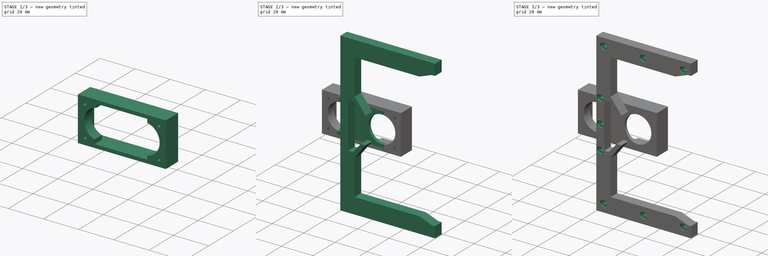
[diagram: build sequence overview — one tinted view per stage of 3, left to right]
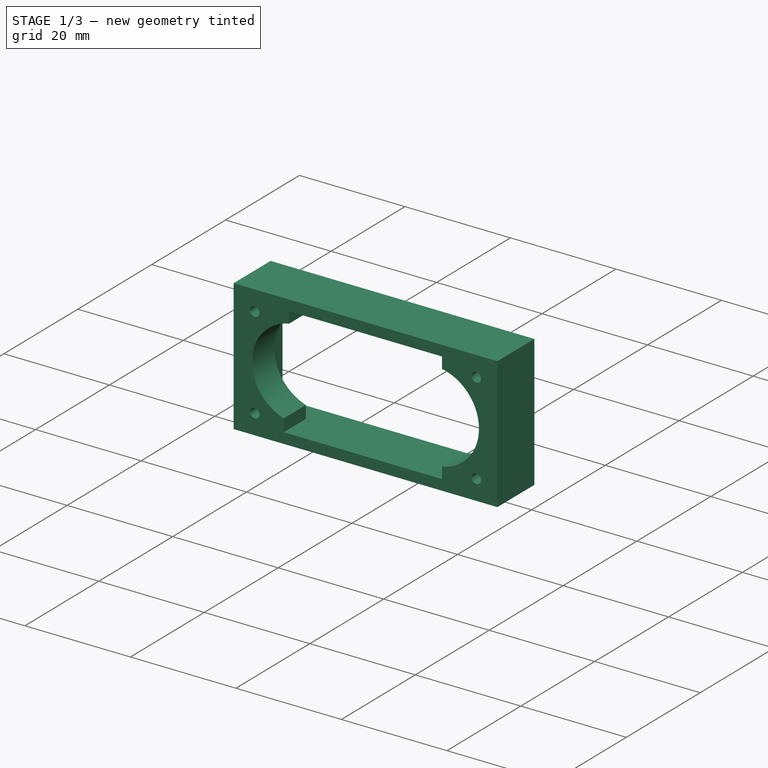
[diagram: stage 1 of 3 — iso view after this stage's code; geometry added in this stage tinted green]
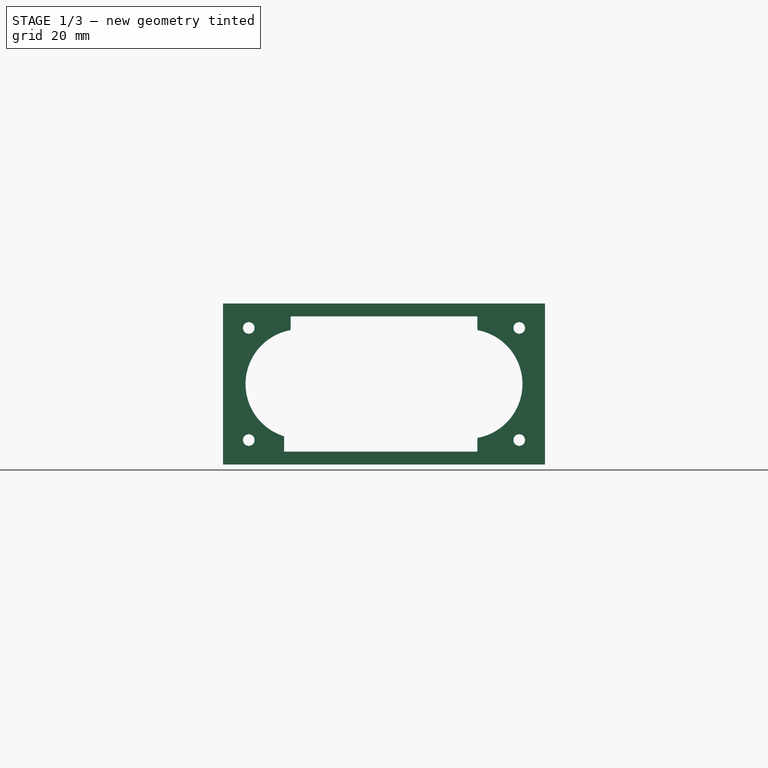
[diagram: stage 1 of 3 — front view after this stage's code; geometry added in this stage tinted green]
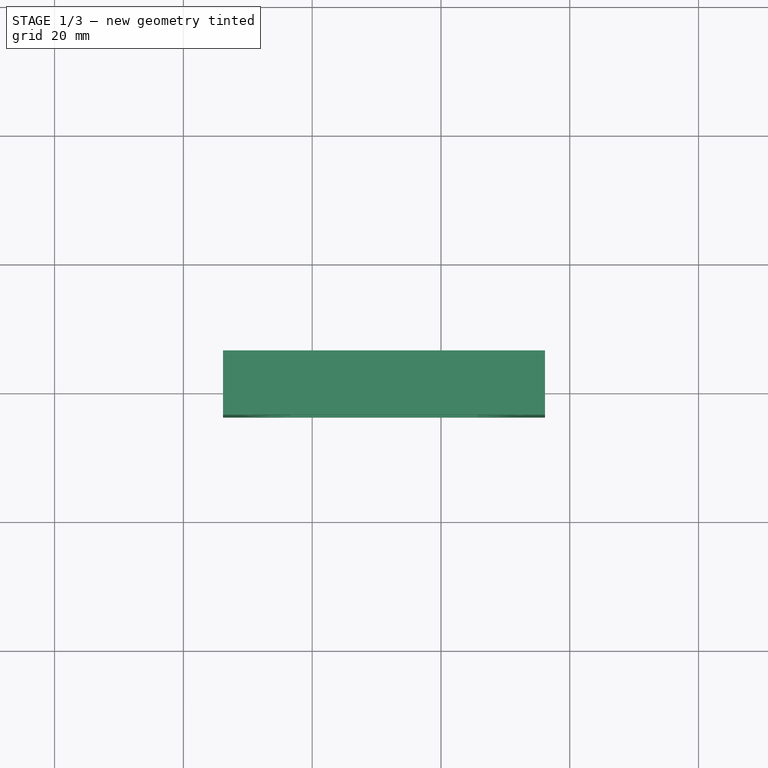
[diagram: stage 1 of 3 — top view after this stage's code; geometry added in this stage tinted green]
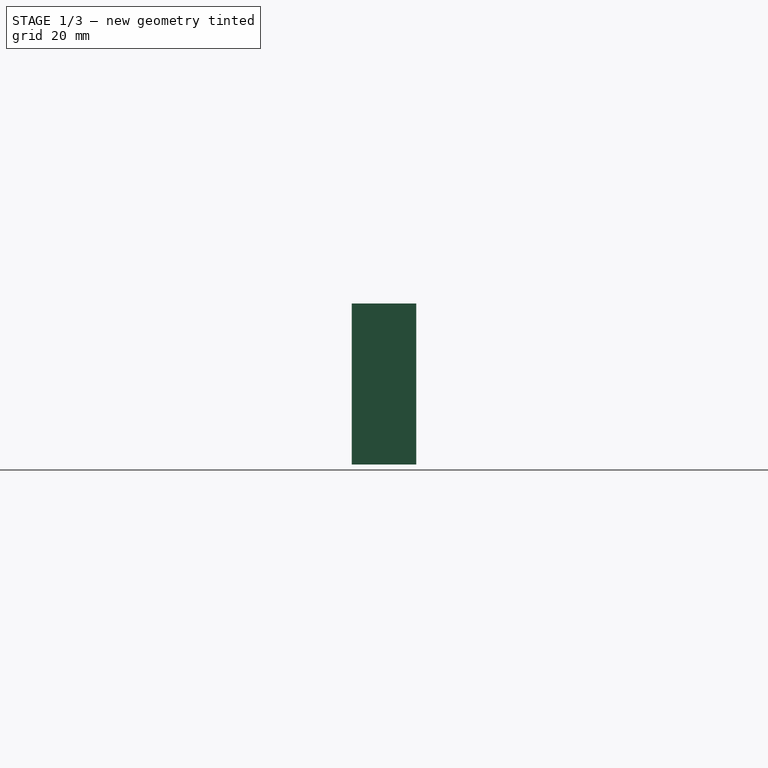
[diagram: stage 1 of 3 — right view after this stage's code; geometry added in this stage tinted green]
FCSTD DOCUMENT  (FreeCAD 1.0R39285 (Git))
Label: top-stand-02
License: All rights reserved
LicenseURL: http://en.wikipedia.org/wiki/All_rights_reserved
objects: Sketcher::SketchObject×7, PartDesign::Pad×4, PartDesign::Hole×2, PartDesign::Body×2, App::Part×2, PartDesign::Plane×1, PartDesign::Pocket×1
note: 38 computed .brp shape members not serialized (recipe doc carries the construction recipe); baked Part::Feature solids carry a one-line shape summary decoded from their .brp

FEATURE [PartDesign::Plane] DatumPlane
  AttachmentSupport = -> [Hole001]
  Length = 83.3753
  MapMode = 5
  Placement = pos=(-8.84591,-3.71239,7.5) rot=(-1,0,0;1.5708rad)
  ResizeMode = 0
  Width = 116.371
FEATURE [PartDesign::Body] Body
  AllowCompound = false
  Group = -> [Sketch001,Pad,Sketch,Hole,Sketch002,Hole001,DatumPlane]
  Origin = -> Origin001
  Tip = -> Hole001
FEATURE [App::Part] Part
  Group = -> [Body]
  Origin = -> Origin
FEATURE [Sketcher::SketchObject] Sketch003
  ArcFitTolerance = 1e-06
  AttachmentSupport = -> [DatumPlane]
  FullyConstrained = true
  MakeInternals = false
  MapMode = 5
  Placement = pos=(-8.84591,-3.71239,7.5) rot=(-1,0,0;1.5708rad)
  sketch-geometry (17):
    g0: LineSegment StartX=-23.5 StartY=-10.75 StartZ=0 EndX=-14.5 EndY=-10.75 EndZ=0
    g1: LineSegment StartX=23.5 StartY=-10.75 StartZ=0 EndX=23.5 EndY=10.75 EndZ=0
    g2: LineSegment StartX=23.5 StartY=10.75 StartZ=0 EndX=14.5 EndY=10.75 EndZ=0
    g3: LineSegment StartX=-23.5 StartY=10.75 StartZ=0 EndX=-23.5 EndY=-10.75 EndZ=0
    g4: GeomPoint [constr] X=0 Y=0 Z=0
    g5: ArcOfCircle CenterX=-13 CenterY=0 CenterZ=0 NormalX=0 NormalY=0 NormalZ=1 AngleXU=0 Radius=8.5 StartAngle=1.86933 EndAngle=4.53499
    g6: ArcOfCircle CenterX=13 CenterY=0 CenterZ=0 NormalX=0 NormalY=0 NormalZ=1 AngleXU=0 Radius=8.5 StartAngle=4.88979 EndAngle=7.67658
    g7: Circle CenterX=-21 CenterY=8.7 CenterZ=0 NormalX=0 NormalY=0 NormalZ=1 AngleXU=0 Radius=0.9
    g8: Circle CenterX=-21 CenterY=-8.7 CenterZ=0 NormalX=0 NormalY=0 NormalZ=1 AngleXU=0 Radius=0.9
    g9: Circle CenterX=21 CenterY=-8.7 CenterZ=0 NormalX=0 NormalY=0 NormalZ=1 AngleXU=0 Radius=0.9
    g10: Circle CenterX=21 CenterY=8.7 CenterZ=0 NormalX=0 NormalY=0 NormalZ=1 AngleXU=0 Radius=0.9
    g11: LineSegment StartX=-15.5 StartY=10.75 StartZ=0 EndX=-15.5 EndY=8.12404 EndZ=0
    g12: LineSegment StartX=-14.5 StartY=-8.3666 StartZ=0 EndX=-14.5 EndY=-10.75 EndZ=0
    g13: LineSegment StartX=14.5 StartY=-8.3666 StartZ=0 EndX=14.5 EndY=-10.75 EndZ=0
    g14: LineSegment StartX=14.5 StartY=8.3666 StartZ=0 EndX=14.5 EndY=10.75 EndZ=0
    g15: LineSegment StartX=-15.5 StartY=10.75 StartZ=0 EndX=-23.5 EndY=10.75 EndZ=0
    g16: LineSegment StartX=14.5 StartY=-10.75 StartZ=0 EndX=23.5 EndY=-10.75 EndZ=0
  constraints (48):
    c: Coincident(g16,g1)
    c: Coincident(g1,g2)
    c: Coincident(g15,g3)
    c: Coincident(g3,g0)
    c: Horizontal(g0)
    c: Horizontal(g2)
    c: Vertical(g3)
    c: Symmetric(g2,g0,g4)
    c: Distance(g1,g3) = 47
    c: Distance(g0,g15) = 21.5
    c: Coincident(g4,g-1)
    c: Diameter(g5) = 17
    c: PointOnObject(g5,g-1)
    c: Diameter(g6) = 17
    c: PointOnObject(g6,g-1)
    c: DistanceX(g5,g4) = 13
    c: DistanceX(g4,g6) = 13
    c: Diameter(g7) = 1.8
    c: Diameter(g8) = 1.8
    c: Diameter(g9) = 1.8
    c: Diameter(g10) = 1.8
    c: PointOnObject(g11,g15)
    c: Vertical(g11)
    c: Vertical(g12)
    c: PointOnObject(g13,g16)
    c: Vertical(g13)
    c: Coincident(g2,g14)
    c: PointOnObject(g15,g11)
    c: Coincident(g5,g12)
    c: Coincident(g5,g11)
    c: Coincident(g6,g14)
    c: Coincident(g6,g13)
    c: Coincident(g0,g12)
    c: PointOnObject(g16,g13)
    c: Vertical(g14)
    c: DistanceX(g15,g15) = 8
    c: DistanceX(g0,g0) = 9
    c: DistanceX(g16,g16) = 9
    c: DistanceX(g2,g2) = 9
    c: Horizontal(g15)
    c: Horizontal(g16)
    c: DistanceX(g7,g10) = 42
    c: Symmetric(g7,g10,g-2)
    c: Symmetric(g7,g8,g-1)
    c: Symmetric(g8,g9,g-2)
    c: Symmetric(g1,g1,g-1)
    c: DistanceY(g3,g2) = 0
    c: DistanceY(g9,g10) = 17.4
FEATURE [Sketcher::SketchObject] Sketch004
  ArcFitTolerance = 1e-06
  AttachmentSupport = -> [DatumPlane]
  FullyConstrained = true
  MakeInternals = false
  MapMode = 5
  Placement = pos=(-8.84591,-3.71239,7.5) rot=(-1,0,0;1.5708rad)
  sketch-geometry (12):
    g0: LineSegment StartX=-25 StartY=-12.5 StartZ=0 EndX=25 EndY=-12.5 EndZ=0
    g1: LineSegment StartX=25 StartY=-12.5 StartZ=0 EndX=25 EndY=12.5 EndZ=0
    g2: LineSegment StartX=25 StartY=12.5 StartZ=0 EndX=-25 EndY=12.5 EndZ=0
    g3: LineSegment StartX=-25 StartY=12.5 StartZ=0 EndX=-25 EndY=-12.5 EndZ=0
    g4: GeomPoint [constr] X=0 Y=0 Z=0
    g5: Circle [constr] CenterX=-13 CenterY=0 CenterZ=0 NormalX=0 NormalY=0 NormalZ=1 AngleXU=0 Radius=8
    g6: Circle [constr] CenterX=13 CenterY=0 CenterZ=0 NormalX=0 NormalY=0 NormalZ=1 AngleXU=0 Radius=8
    g7: LineSegment StartX=-22.75 StartY=-10.5 StartZ=0 EndX=22.75 EndY=-10.5 EndZ=0
    g8: LineSegment StartX=22.75 StartY=-10.5 StartZ=0 EndX=22.75 EndY=10.5 EndZ=0
    g9: LineSegment StartX=22.75 StartY=10.5 StartZ=0 EndX=-22.75 EndY=10.5 EndZ=0
    g10: LineSegment StartX=-22.75 StartY=10.5 StartZ=0 EndX=-22.75 EndY=-10.5 EndZ=0
    g11: GeomPoint [constr] X=0 Y=0 Z=0
  constraints (30):
    c: Coincident(g0,g1)
    c: Coincident(g1,g2)
    c: Coincident(g2,g3)
    c: Coincident(g3,g0)
    c: Horizontal(g0)
    c: Horizontal(g2)
    c: Vertical(g1)
    c: Vertical(g3)
    c: Symmetric(g2,g0,g4)
    c: Distance(g1,g3) = 50
    c: Distance(g0,g2) = 25
    c: Coincident(g4,g-1)
    c: Diameter(g5) = 16
    c: PointOnObject(g5,g-1)
    c: Diameter(g6) = 16
    c: PointOnObject(g6,g-1)
    c: DistanceX(g5,g4) = 13
    c: DistanceX(g4,g6) = 13
    c: Coincident(g7,g8)
    c: Coincident(g8,g9)
    c: Coincident(g9,g10)
    c: Coincident(g10,g7)
    c: Horizontal(g7)
    c: Horizontal(g9)
    c: Vertical(g8)
    c: Symmetric(g9,g7,g11)
    c: Distance(g8,g10) = 45.5
    c: Distance(g7,g9) = 21
    c: PointOnObject(g11,g-2)
    c: Symmetric(g9,g7,g-1)
FEATURE [PartDesign::Pad] Pad001
  Direction = (0,1,2e-16)
  Length = 10
  Length2 = 10
  Placement = pos=(-8.84591,-3.71239,7.5) rot=(-1,0,0;1.5708rad)
  Profile = -> Sketch004
  ReferenceAxis = -> Sketch004 [N_Axis]
  Suppressed = false
  Type = 0
FEATURE [PartDesign::Pad] Pad002
  BaseFeature = -> Pad001
  Direction = (0,1,2e-16)
  Length = 6
  Length2 = 10
  Placement = pos=(-8.84591,-3.71239,7.5) rot=(-1,0,0;1.5708rad)
  Profile = -> Sketch003
  ReferenceAxis = -> Sketch003 [N_Axis]
  Suppressed = false
  Type = 0
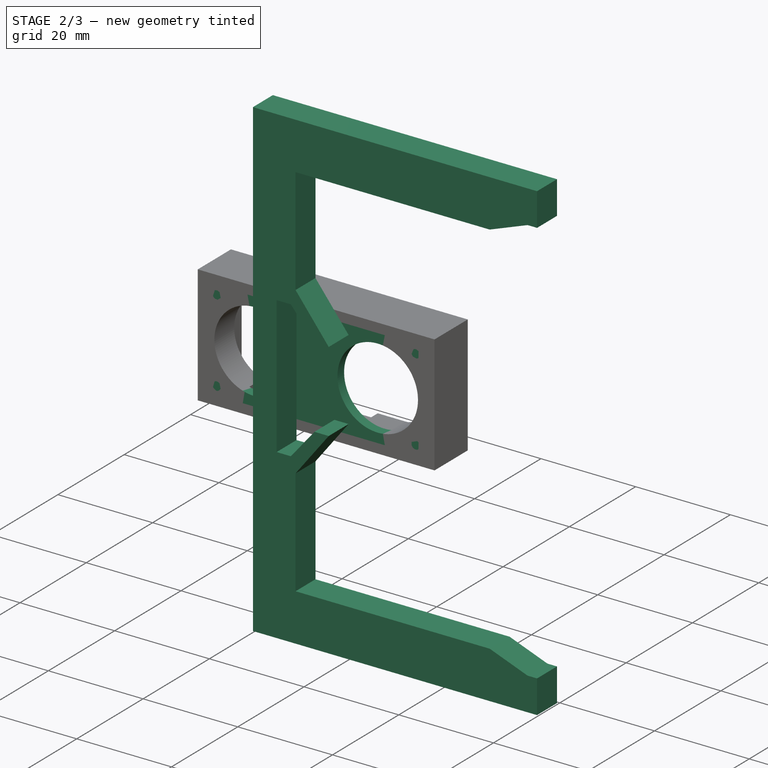
[diagram: stage 2 of 3 — iso view after this stage's code; geometry added in this stage tinted green]
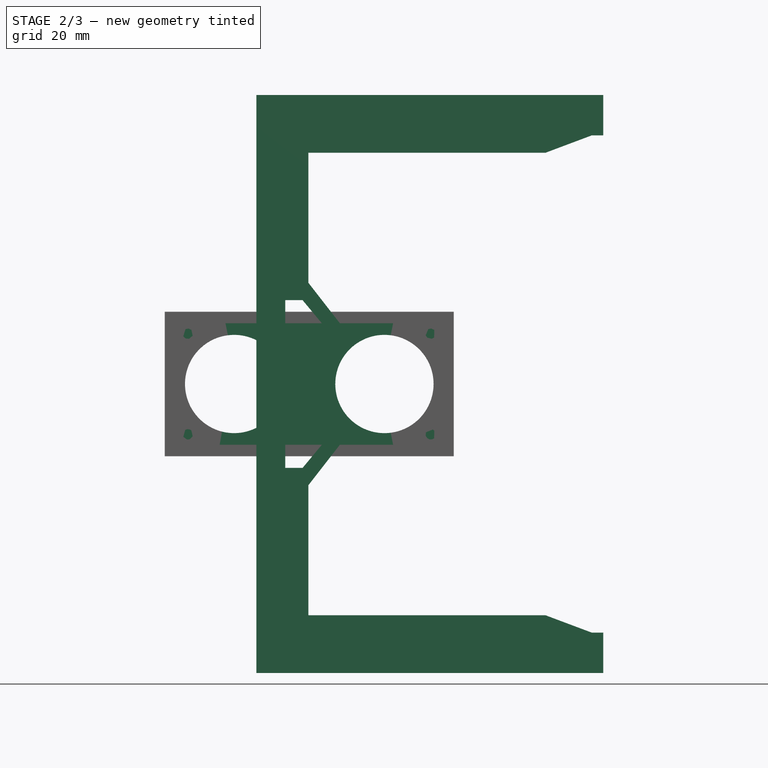
[diagram: stage 2 of 3 — front view after this stage's code; geometry added in this stage tinted green]
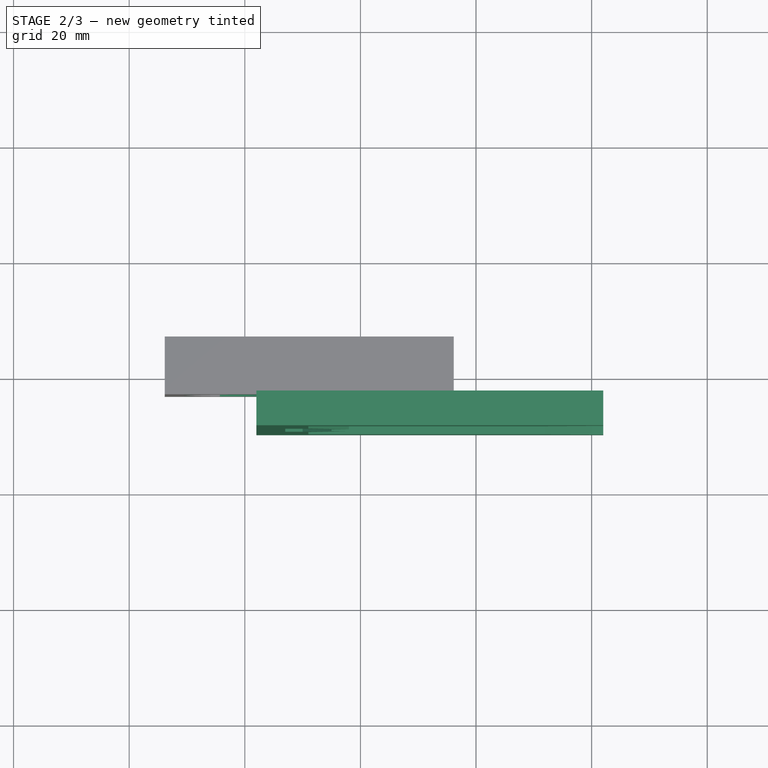
[diagram: stage 2 of 3 — top view after this stage's code; geometry added in this stage tinted green]
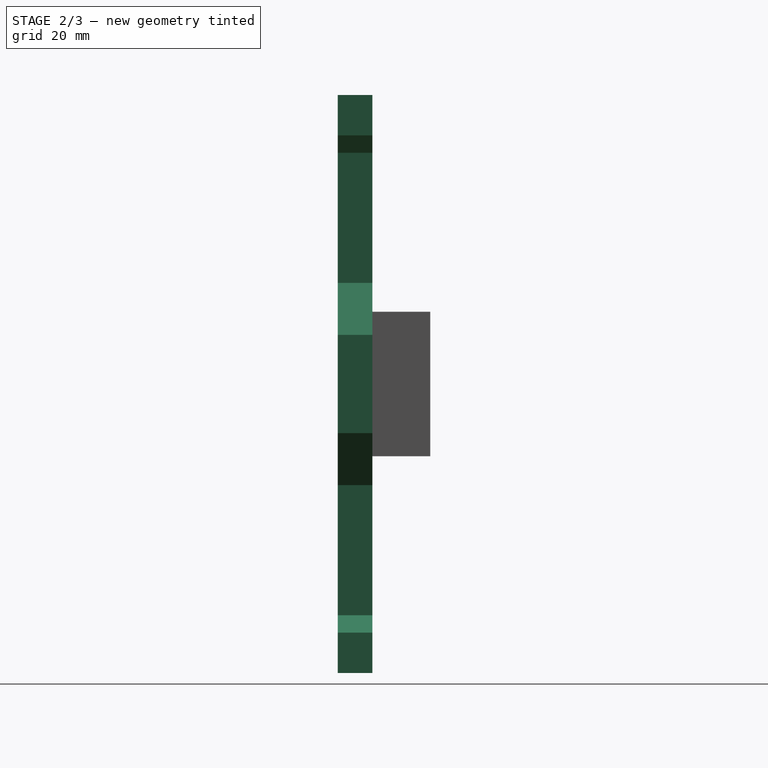
[diagram: stage 2 of 3 — right view after this stage's code; geometry added in this stage tinted green]
FEATURE [Sketcher::SketchObject] Sketch001  label="Sketch_base"
  ArcFitTolerance = 1e-06
  FullyConstrained = false
  MakeInternals = false
  MapMode = 45
  Placement = pos=(-8.84591,-9.71239,7.5) rot=(-1,0,0;1.5708rad)
  sketch-geometry (25):
    g0: GeomPoint [constr] X=-3.15 Y=0 Z=0
    g1: LineSegment StartX=3.85 StartY=8.5 StartZ=0 EndX=-1.15 EndY=14.5 EndZ=0
    g2: LineSegment StartX=-1.15 StartY=14.5 StartZ=0 EndX=-4.15 EndY=14.5 EndZ=0
    g3: LineSegment StartX=-4.15 StartY=14.5 StartZ=0 EndX=-4.15 EndY=-14.5 EndZ=0
    g4: LineSegment StartX=-4.15 StartY=-14.5 StartZ=0 EndX=-1.15 EndY=-14.5 EndZ=0
    g5: LineSegment StartX=-1.15 StartY=-14.5 StartZ=0 EndX=3.85 EndY=-8.5 EndZ=0
    g6: LineSegment StartX=3.85 StartY=-8.5 StartZ=0 EndX=6.85 EndY=-8.5 EndZ=0
    g7: LineSegment StartX=6.85 StartY=-8.5 StartZ=0 EndX=-0.15 EndY=-17.5 EndZ=0
    g8: LineSegment StartX=-9.15 StartY=-17.5 StartZ=0 EndX=-9.15 EndY=17.5 EndZ=0
    g9: LineSegment StartX=-0.15 StartY=17.5 StartZ=0 EndX=6.85 EndY=8.5 EndZ=0
    g10: LineSegment StartX=6.85 StartY=8.5 StartZ=0 EndX=3.85 EndY=8.5 EndZ=0
    g11: LineSegment StartX=-0.15 StartY=-17.5 StartZ=0 EndX=-0.15 EndY=-40 EndZ=0
    g12: LineSegment StartX=-0.15 StartY=-40 StartZ=0 EndX=40.85 EndY=-40 EndZ=0
    g13: LineSegment StartX=40.85 StartY=-40 StartZ=0 EndX=48.85 EndY=-43 EndZ=0
    g14: LineSegment StartX=48.85 StartY=-43 StartZ=0 EndX=50.85 EndY=-43 EndZ=0
    g15: LineSegment StartX=50.85 StartY=-43 StartZ=0 EndX=50.85 EndY=-50 EndZ=0
    g16: LineSegment StartX=50.85 StartY=-50 StartZ=0 EndX=-9.15 EndY=-50 EndZ=0
    g17: LineSegment StartX=-9.15 StartY=-50 StartZ=0 EndX=-9.15 EndY=-17.5 EndZ=0
    g18: LineSegment StartX=-0.15 StartY=17.5 StartZ=0 EndX=-0.15 EndY=40 EndZ=0
    g19: LineSegment StartX=-0.15 StartY=40 StartZ=0 EndX=40.85 EndY=40 EndZ=0
    g20: LineSegment StartX=40.85 StartY=40 StartZ=0 EndX=48.85 EndY=43 EndZ=0
    g21: LineSegment StartX=48.85 StartY=43 StartZ=0 EndX=50.85 EndY=43 EndZ=0
    g22: LineSegment StartX=50.85 StartY=43 StartZ=0 EndX=50.85 EndY=50 EndZ=0
    g23: LineSegment StartX=50.85 StartY=50 StartZ=0 EndX=-9.15 EndY=50 EndZ=0
    g24: LineSegment StartX=-9.15 StartY=50 StartZ=0 EndX=-9.15 EndY=17.5 EndZ=0
  constraints (77):
    c: Coincident(g1,g2)
    c: Horizontal(g2)
    c: Coincident(g2,g3)
    c: Vertical(g3)
    c: Coincident(g3,g4)
    c: Horizontal(g4)
    c: Coincident(g4,g5)
    c: Coincident(g5,g6)
    c: Horizontal(g6)
    c: Coincident(g6,g7)
    c: Vertical(g8)
    c: Coincident(g9,g10)
    c: Coincident(g10,g1)
    c: Horizontal(g10)
    c: Equal(g4,g2)
    c: Equal(g7,g9)
    c: Equal(g5,g1)
    c: Equal(g6,g10)
    c: Coincident(g11,g12)
    c: Horizontal(g12)
    c: Coincident(g12,g13)
    c: Coincident(g13,g14)
    c: Horizontal(g14)
    c: Coincident(g14,g15)
    c: Vertical(g15)
    c: Coincident(g15,g16)
    c: Horizontal(g16)
    c: Coincident(g16,g17)
    c: Vertical(g17)
    c: Vertical(g18)
    c: Coincident(g18,g19)
    c: Horizontal(g19)
    c: Coincident(g19,g20)
    c: Coincident(g20,g21)
    c: Horizontal(g21)
    c: Coincident(g21,g22)
    c: Vertical(g22)
    c: Coincident(g22,g23)
    c: Horizontal(g23)
    c: Coincident(g23,g24)
    c: Coincident(g24,g8)
    c: Vertical(g24)
    c: Equal(g16,g23)
    c: Equal(g22,g15)
    c: Equal(g21,g14)
    c: Parallel(g17,g11)
    c: Coincident(g11,g7)
    c: Coincident(g18,g9)
    c: Coincident(g8,g17)
    c: DistanceY(g17,g17) = 32.5
    c: DistanceY(g8,g8) = 35
    c: DistanceY(g24,g24) = 32.5
    c: DistanceY(g18,g18) = 22.5
    c: DistanceY(g11,g11) = 22.5
    c: DistanceY(g9,g9) = 9
    c: DistanceY(g7,g7) = 9
    c: DistanceY(g5,g5) = 6
    c: DistanceY(g1,g1) = 6
    c: DistanceY(g3,g3) = 29
    c: DistanceX(g23,g23) = 60
    c: DistanceX(g19,g19) = 41
    c: DistanceX(g20,g20) = 8
    c: DistanceX(g16,g16) = 60
    c: DistanceX(g13,g13) = 8
    c: DistanceX(g5,g5) = 5
    c: DistanceX(g7,g7) = 7
    c: DistanceX(g4,g7) = 1
    c: DistanceX(g2,g1) = 3
    c: DistanceX(g8,g-1) = 9.15
    c: DistanceY(g16,g11) = 10
    c: DistanceX(g0,g-1) = 3.15
    c: DistanceY(g-1,g18) = 40
    c: DistanceX(g16,g12) = 50
    c: DistanceY(g15,g15) = 7
    c: DistanceY(g22,g22) = 7
    c: DistanceX(g12,g12) = 41
    c: DistanceX(g21,g21) = 2
FEATURE [PartDesign::Pad] Pad
  Direction = (0,1,2e-16)
  Length = 6
  Length2 = 10
  Placement = pos=(-8.84591,-9.71239,7.5) rot=(-1,0,0;1.5708rad)
  Profile = -> Sketch001
  ReferenceAxis = -> Sketch001 [N_Axis]
  Suppressed = false
  Type = 0
FEATURE [Sketcher::SketchObject] Sketch005
  ArcFitTolerance = 1e-06
  AttachmentSupport = -> [DatumPlane]
  FullyConstrained = true
  MakeInternals = false
  MapMode = 5
  Placement = pos=(-8.84591,-3.71239,7.5) rot=(-1,0,0;1.5708rad)
  sketch-geometry (12):
    g0: LineSegment StartX=-25 StartY=-12.5 StartZ=0 EndX=25 EndY=-12.5 EndZ=0
    g1: LineSegment StartX=25 StartY=-12.5 StartZ=0 EndX=25 EndY=12.5 EndZ=0
    g2: LineSegment StartX=25 StartY=12.5 StartZ=0 EndX=-25 EndY=12.5 EndZ=0
    g3: LineSegment StartX=-25 StartY=12.5 StartZ=0 EndX=-25 EndY=-12.5 EndZ=0
    g4: GeomPoint [constr] X=0 Y=0 Z=0
    g5: Circle CenterX=-13 CenterY=0 CenterZ=0 NormalX=0 NormalY=0 NormalZ=1 AngleXU=0 Radius=8.5
    g6: Circle CenterX=13 CenterY=0 CenterZ=0 NormalX=0 NormalY=0 NormalZ=1 AngleXU=0 Radius=8.5
    g7: LineSegment [constr] StartX=-22.55 StartY=-10.5 StartZ=0 EndX=22.55 EndY=-10.5 EndZ=0
    g8: LineSegment [constr] StartX=22.55 StartY=-10.5 StartZ=0 EndX=22.55 EndY=10.5 EndZ=0
    g9: LineSegment [constr] StartX=22.55 StartY=10.5 StartZ=0 EndX=-22.55 EndY=10.5 EndZ=0
    g10: LineSegment [constr] StartX=-22.55 StartY=10.5 StartZ=0 EndX=-22.55 EndY=-10.5 EndZ=0
    g11: GeomPoint [constr] X=0 Y=0 Z=0
  constraints (30):
    c: Coincident(g0,g1)
    c: Coincident(g1,g2)
    c: Coincident(g2,g3)
    c: Coincident(g3,g0)
    c: Horizontal(g0)
    c: Horizontal(g2)
    c: Vertical(g1)
    c: Vertical(g3)
    c: Symmetric(g2,g0,g4)
    c: Distance(g1,g3) = 50
    c: Distance(g0,g2) = 25
    c: Coincident(g4,g-1)
    c: Diameter(g5) = 17
    c: PointOnObject(g5,g-1)
    c: Diameter(g6) = 17
    c: PointOnObject(g6,g-1)
    c: DistanceX(g5,g4) = 13
    c: DistanceX(g4,g6) = 13
    c: Coincident(g7,g8)
    c: Coincident(g8,g9)
    c: Coincident(g9,g10)
    c: Coincident(g10,g7)
    c: Horizontal(g7)
    c: Horizontal(g9)
    c: Vertical(g8)
    c: Symmetric(g9,g7,g11)
    c: Distance(g8,g10) = 45.1
    c: Distance(g7,g9) = 21
    c: PointOnObject(g11,g-2)
    c: Symmetric(g9,g7,g-1)
FEATURE [PartDesign::Pad] Pad003
  BaseFeature = -> Pad002
  Direction = (0,1,2e-16)
  Length = 2
  Length2 = 10
  Placement = pos=(-8.84591,-3.71239,7.5) rot=(-1,0,0;1.5708rad)
  Profile = -> Sketch005
  ReferenceAxis = -> Sketch005 [N_Axis]
  Suppressed = false
  Type = 0
FEATURE [Sketcher::SketchObject] Sketch006
  ArcFitTolerance = 1e-06
  AttachmentSupport = -> [Pad003]
  ExternalGeometry = -> [Pad003]
  FullyConstrained = true
  MakeInternals = false
  MapMode = 5
  Placement = pos=(-8.84591,6.28761,7.5) rot=(-1,0,0;1.5708rad)
  sketch-geometry (4):
    g0: LineSegment StartX=-6 StartY=10.5 StartZ=0 EndX=-6 EndY=12.5 EndZ=0
    g1: LineSegment StartX=-6 StartY=12.5 StartZ=0 EndX=6 EndY=12.5 EndZ=0
    g2: LineSegment StartX=6 StartY=12.5 StartZ=0 EndX=6 EndY=10.5 EndZ=0
    g3: LineSegment StartX=6 StartY=10.5 StartZ=0 EndX=-6 EndY=10.5 EndZ=0
  constraints (11):
    c: Coincident(g0,g1)
    c: Coincident(g1,g2)
    c: Coincident(g2,g3)
    c: Coincident(g3,g0)
    c: Vertical(g0)
    c: Vertical(g2)
    c: Horizontal(g1)
    c: PointOnObject(g0,g-3)
    c: PointOnObject(g1,g-4)
    c: DistanceX(g3,g3) = 12
    c: Symmetric(g0,g2,g-2)
FEATURE [PartDesign::Pocket] Pocket
  BaseFeature = -> Pad003
  Direction = (0,-1,-2e-16)
  Length = 2
  Length2 = 5
  Placement = pos=(-8.84591,-3.71239,7.5) rot=(-1,0,0;1.5708rad)
  Profile = -> Sketch006
  ReferenceAxis = -> Sketch006 [N_Axis]
  Suppressed = false
  Type = 0
FEATURE [PartDesign::Body] Body001
  AllowCompound = false
  Group = -> [Sketch003,Sketch004,Pad001,Pad002,Sketch005,Pad003,Sketch006,Pocket]
  Origin = -> Origin003
  Placement = pos=(24,0,0) rot=(0,0,1;0rad)
  Tip = -> Pocket
FEATURE [App::Part] Part001
  Group = -> [Body001]
  Origin = -> Origin002
  Placement = pos=(0,-10,28) rot=(0,0,1;0rad)
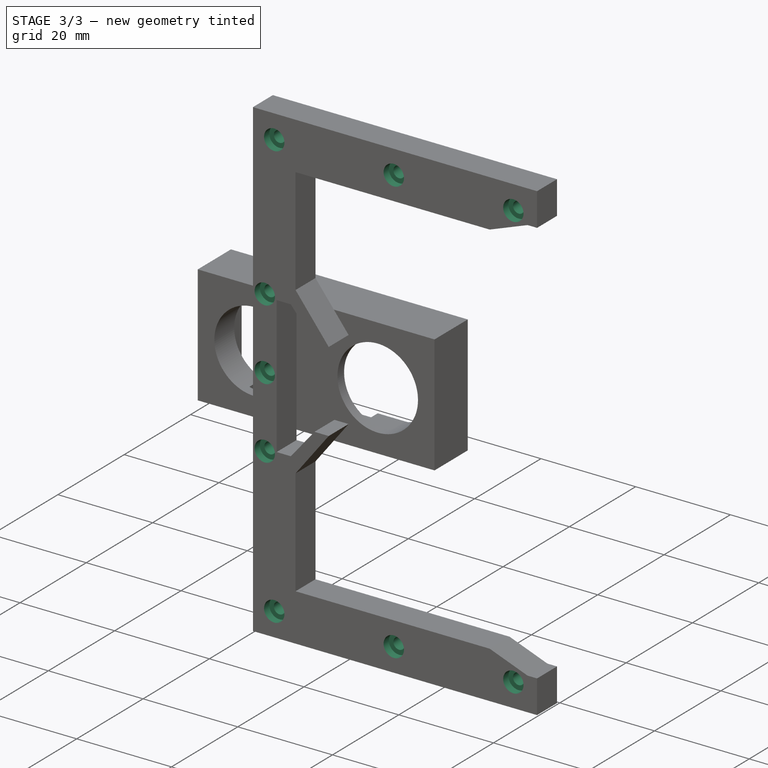
[diagram: stage 3 of 3 — iso view after this stage's code; geometry added in this stage tinted green]
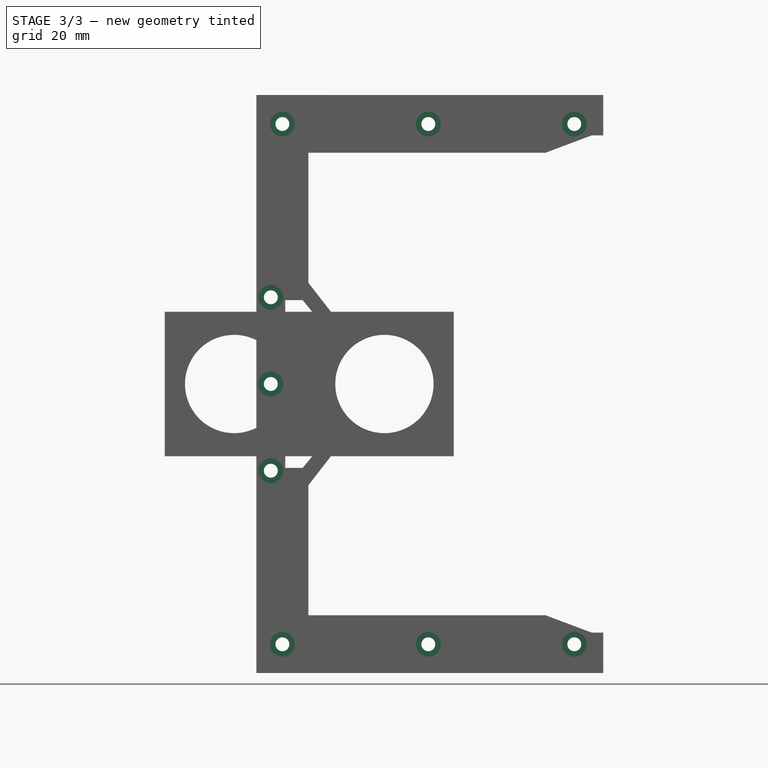
[diagram: stage 3 of 3 — front view after this stage's code; geometry added in this stage tinted green]
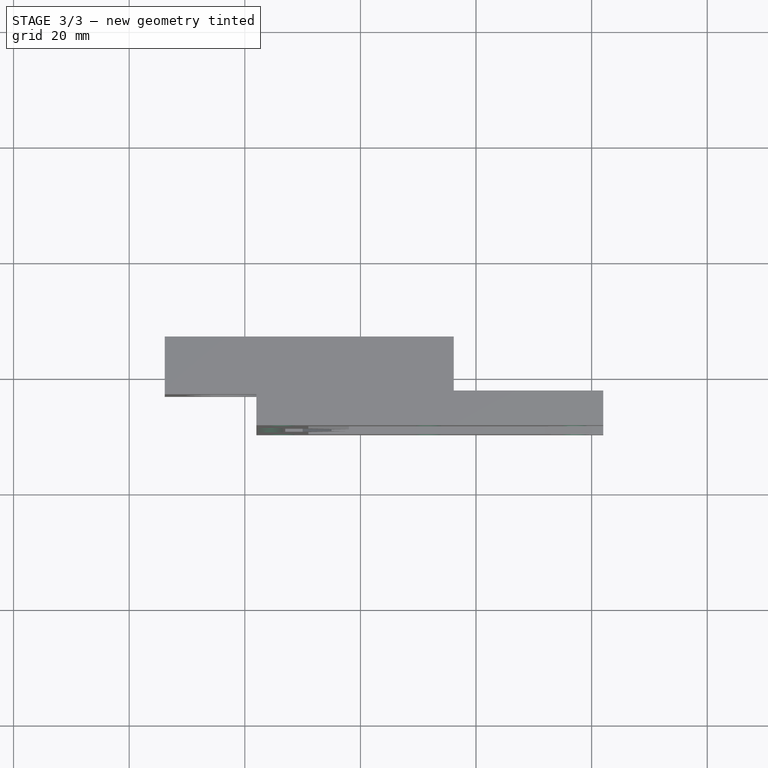
[diagram: stage 3 of 3 — top view after this stage's code; geometry added in this stage tinted green]
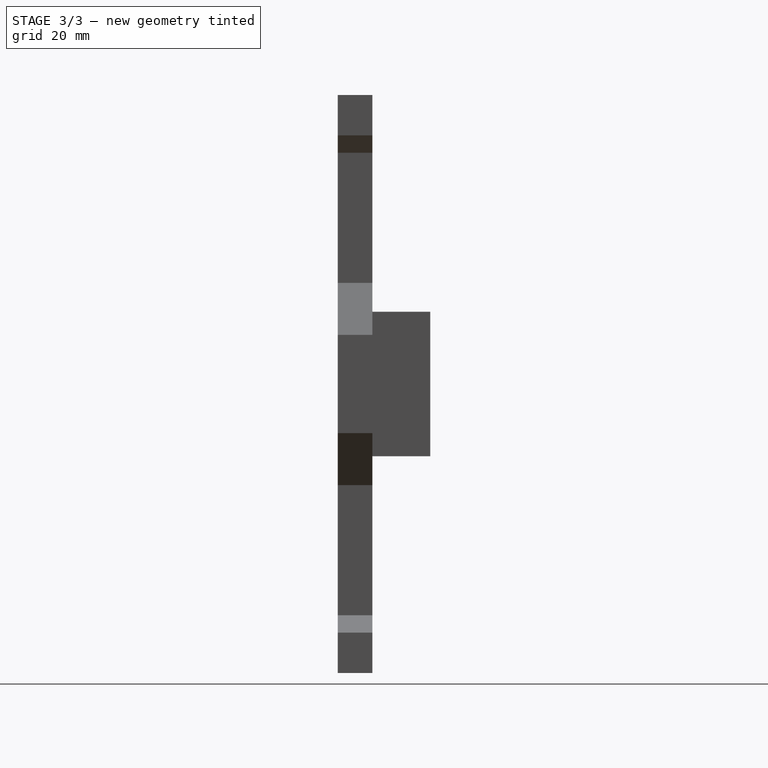
[diagram: stage 3 of 3 — right view after this stage's code; geometry added in this stage tinted green]
FEATURE [Sketcher::SketchObject] Sketch  label="Sketch-holes-back"
  ArcFitTolerance = 1e-06
  FullyConstrained = true
  MakeInternals = false
  MapMode = 5
  Placement = pos=(-8.84591,-9.71239,7.5) rot=(1,0,0;1.5708rad)
  sketch-geometry (4):
    g0: LineSegment [constr] StartX=-6.65409 StartY=16 StartZ=0 EndX=-6.65409 EndY=-16 EndZ=0
    g1: Circle CenterX=-6.65409 CenterY=-4.868e-13 CenterZ=0 NormalX=0 NormalY=0 NormalZ=1 AngleXU=0 Radius=1
    g2: Circle CenterX=-6.65409 CenterY=15 CenterZ=0 NormalX=0 NormalY=0 NormalZ=1 AngleXU=0 Radius=1
    g3: Circle CenterX=-6.65409 CenterY=-15 CenterZ=0 NormalX=0 NormalY=0 NormalZ=1 AngleXU=0 Radius=1
  constraints (10):
    c: Symmetric(g-3,g-4,g0)
    c: Symmetric(g-3,g-4,g0)
    c: Diameter(g1) = 2
    c: Symmetric(g0,g0,g1)
    c: Diameter(g2) = 2
    c: PointOnObject(g2,g0)
    c: Diameter(g3) = 2
    c: Distance(g2,g1) = 15
    c: Distance(g1,g3) = 15
    c: DistanceY(g3,g1) = 15
FEATURE [PartDesign::Hole] Hole
  BaseFeature = -> Pad
  CustomThreadClearance = 0
  Depth = 235.16
  DepthType = 1
  Diameter = 2.4
  DrillForDepth = false
  DrillPoint = 1
  DrillPointAngle = 118
  HoleCutCountersinkAngle = 90
  HoleCutCustomValues = false
  HoleCutDepth = 1.6
  HoleCutDiameter = 4.3
  HoleCutType = 4
  ModelThread = false
  Placement = pos=(-8.84591,-9.71239,7.5) rot=(-1,0,0;1.5708rad)
  Profile = -> Sketch
  Suppressed = false
  Tapered = false
  TaperedAngle = 90
  ThreadClass = 0
  ThreadDepth = 235.16
  ThreadDepthType = 0
  ThreadDirection = 0
  ThreadFit = 0
  ThreadSize = 6
  ThreadType = 1
  Threaded = false
  UseCustomThreadClearance = false
FEATURE [Sketcher::SketchObject] Sketch002  label="Sketch-holes-sides"
  ArcFitTolerance = 1e-06
  AttachmentSupport = -> [Hole]
  FullyConstrained = true
  MakeInternals = false
  MapMode = 5
  Placement = pos=(-8.84591,-9.71239,7.5) rot=(1,0,0;1.5708rad)
  sketch-geometry (8):
    g0: LineSegment [constr] StartX=-4.65409 StartY=44.9733 StartZ=0 EndX=45.8459 EndY=44.9733 EndZ=0
    g1: Circle CenterX=20.5959 CenterY=44.9733 CenterZ=0 NormalX=0 NormalY=0 NormalZ=1 AngleXU=0 Radius=1
    g2: LineSegment [constr] StartX=-4.65409 StartY=-45.0267 StartZ=0 EndX=45.8459 EndY=-45.0267 EndZ=0
    g3: Circle CenterX=20.5959 CenterY=-45.0267 CenterZ=0 NormalX=0 NormalY=0 NormalZ=1 AngleXU=0 Radius=1
    g4: Circle CenterX=-4.65409 CenterY=-45.0267 CenterZ=0 NormalX=0 NormalY=0 NormalZ=1 AngleXU=0 Radius=1
    g5: Circle CenterX=45.8459 CenterY=-45.0267 CenterZ=0 NormalX=0 NormalY=0 NormalZ=1 AngleXU=0 Radius=1
    g6: Circle CenterX=-4.65409 CenterY=44.9733 CenterZ=0 NormalX=0 NormalY=0 NormalZ=1 AngleXU=0 Radius=1
    g7: Circle CenterX=45.8459 CenterY=44.9733 CenterZ=0 NormalX=0 NormalY=0 NormalZ=1 AngleXU=0 Radius=1
  constraints (16):
    c: Symmetric(g-4,g-3,g0)
    c: Symmetric(g-3,g-4,g0)
    c: Diameter(g1) = 2
    c: Symmetric(g0,g0,g1)
    c: Symmetric(g-5,g-6,g2)
    c: Symmetric(g-6,g-5,g2)
    c: Diameter(g3) = 2
    c: Symmetric(g2,g2,g3)
    c: Diameter(g4) = 2
    c: Coincident(g4,g2)
    c: Diameter(g5) = 2
    c: Coincident(g5,g2)
    c: Diameter(g6) = 2
    c: Coincident(g6,g0)
    c: Diameter(g7) = 2
    c: Coincident(g7,g0)
FEATURE [PartDesign::Hole] Hole001
  BaseFeature = -> Hole
  CustomThreadClearance = 0
  Depth = 235.16
  DepthType = 1
  Diameter = 2.4
  DrillForDepth = false
  DrillPoint = 1
  DrillPointAngle = 118
  HoleCutCountersinkAngle = 90
  HoleCutCustomValues = false
  HoleCutDepth = 1.6
  HoleCutDiameter = 4.3
  HoleCutType = 4
  ModelThread = false
  Placement = pos=(-8.84591,-9.71239,7.5) rot=(-1,0,0;1.5708rad)
  Profile = -> Sketch002
  Suppressed = false
  Tapered = false
  TaperedAngle = 90
  ThreadClass = 0
  ThreadDepth = 235.16
  ThreadDepthType = 0
  ThreadDirection = 0
  ThreadFit = 0
  ThreadSize = 6
  ThreadType = 1
  Threaded = false
  UseCustomThreadClearance = false
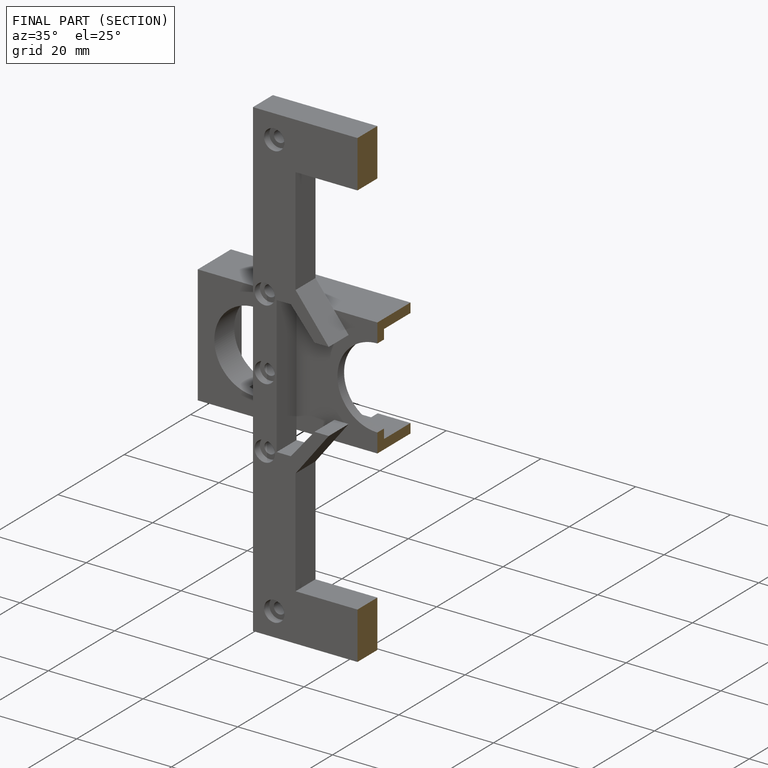
[diagram: finished part — half-section view (interior)]
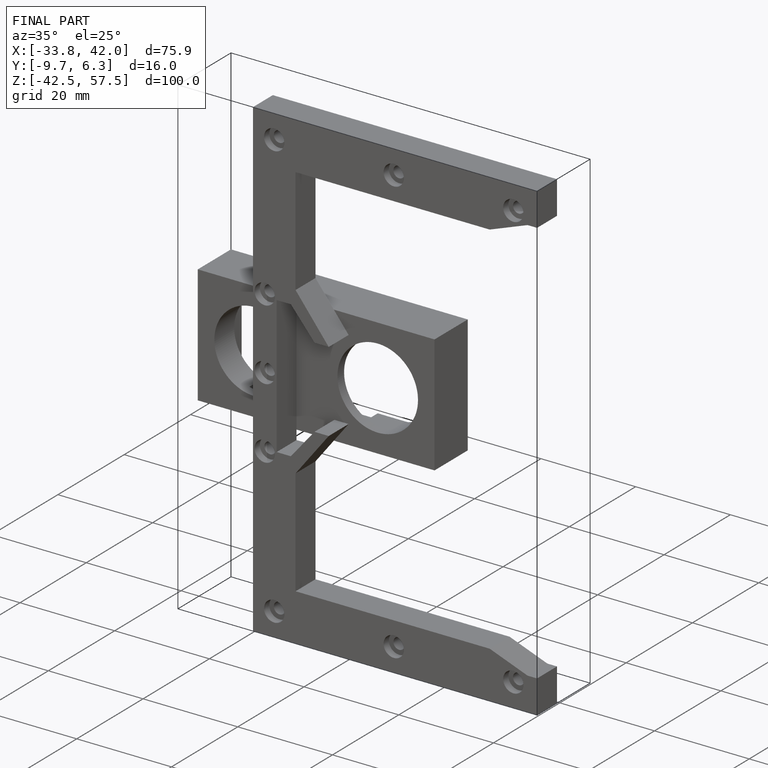
[diagram: finished part — iso view with bounding-box wireframe]
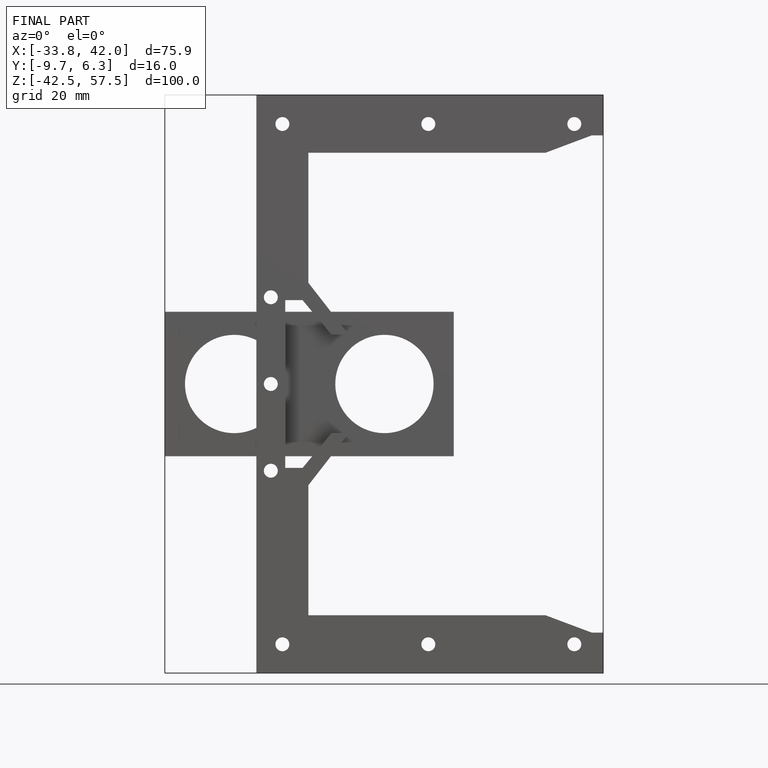
[diagram: finished part — front view with bounding-box wireframe]
